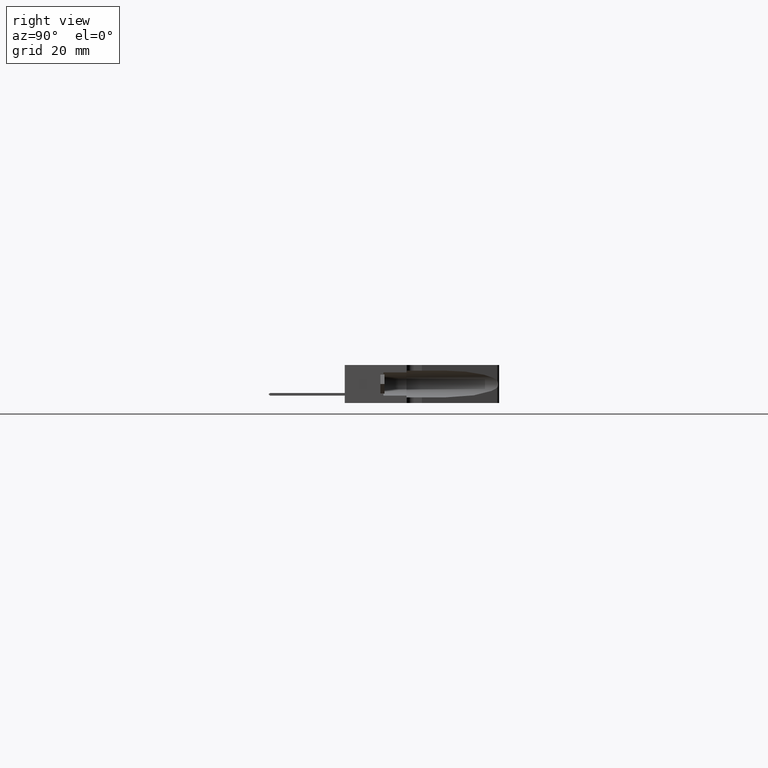
[diagram: clean part render]
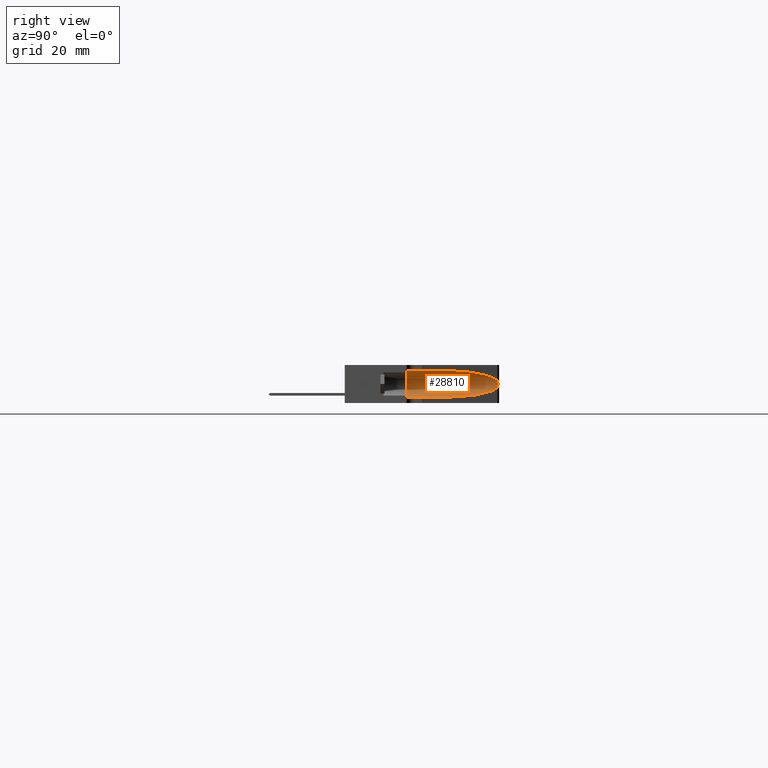
[diagram: same view with one face highlighted and labeled with its STEP entity id]
A machine part, right view. The second image highlights one B-rep face of the part: STEP entity #28810.
In plain terms, the highlighted cylindrical surface (edge-blend (fillet) strip) has radius 3.3083 mm, axis along (0, -1, 0).
Its self-contained STEP definition (entity closure, byte-faithful):
#506 = ORIENTED_EDGE ( 'NONE', *, *, #27250, .F. ) ;
#871 = CARTESIAN_POINT ( 'NONE',  ( 0.2601832251689556500, 1.238348025830904500, 0.1989473821119740700 ) ) ;
#2962 = VECTOR ( 'NONE', #34662, 39.37007874015748100 ) ;
#3964 = CARTESIAN_POINT ( 'NONE',  ( 0.1304999999999996200, 0.3499999999999999800, 0.1849999999999999100 ) ) ;
#4643 = CARTESIAN_POINT ( 'NONE',  ( 0.1305000000000001400, 1.618579452085978400, 0.05475000000000000700 ) ) ;
#5209 = CARTESIAN_POINT ( 'NONE',  ( 0.1305000000000001400, 0.7229729729729719200, 0.3152499999999999200 ) ) ;
#6159 = CARTESIAN_POINT ( 'NONE',  ( 0.2548722146876841200, 1.227184654139258100, 0.1463138950825924900 ) ) ;
#6753 = CARTESIAN_POINT ( 'NONE',  ( 0.1305000000000001400, 0.3499999999999999800, 0.05475000000000000700 ) ) ;
#7055 = ORIENTED_EDGE ( 'NONE', *, *, #25528, .T. ) ;
#7083 = AXIS2_PLACEMENT_3D ( 'NONE', #3964, #37403, #37707 ) ;
#7474 = CARTESIAN_POINT ( 'NONE',  ( 0.2601746583527694300, 1.238333326094013000, 0.1710187248053554000 ) ) ;
#7790 = CARTESIAN_POINT ( 'NONE',  ( 0.1896596859580425300, 0.9628095376677405800, 0.05474999999999999300 ) ) ;
#8021 = CARTESIAN_POINT ( 'NONE',  ( 0.2548722146876835600, 1.227184654139258400, 0.2236861049174074000 ) ) ;
#8688 = ORIENTED_EDGE ( 'NONE', *, *, #32174, .F. ) ;
#8937 = DIRECTION ( 'NONE',  ( -5.612000012723082900E-032, -1.000000000000000000, -5.916456789157588500E-031 ) ) ;
#9759 = VECTOR ( 'NONE', #8937, 39.37007874015748100 ) ;
#10749 = CARTESIAN_POINT ( 'NONE',  ( 0.2578854245038478300, 1.234861984818298900, 0.1576467210914303300 ) ) ;
#10897 = CARTESIAN_POINT ( 'NONE',  ( 0.2607492713587629700, 1.238958935659852500, 0.1920295986915269100 ) ) ;
#11816 = EDGE_LOOP ( 'NONE', ( #33201, #22443, #18613, #7055, #506, #8688 ) ) ;
#14166 = CARTESIAN_POINT ( 'NONE',  ( 0.2585429365154178200, 1.235904140357740900, 0.2091219894081829400 ) ) ;
#14315 = CARTESIAN_POINT ( 'NONE',  ( 0.2585611947877646300, 1.235932299014800700, 0.1609817666496035400 ) ) ;
#14868 = CARTESIAN_POINT ( 'NONE',  ( 0.1305000000000001400, 0.7229729729729719200, 0.3152499999999999200 ) ) ;
#16045 = DIRECTION ( 'NONE',  ( -5.612000012723082900E-032, -1.000000000000000000, -5.916456789157588500E-031 ) ) ;
#16179 = LINE ( 'NONE', #43091, #9759 ) ;
#16320 = EDGE_CURVE ( 'NONE', #26771, #25203, #20971, .T. ) ;
#17882 = CARTESIAN_POINT ( 'NONE',  ( 0.2563928845766985100, 1.231861671013515100, 0.1514406517340757000 ) ) ;
#18024 = CARTESIAN_POINT ( 'NONE',  ( 0.2563858078316529300, 1.231844894428759900, 0.2185847291077728000 ) ) ;
#18263 = CARTESIAN_POINT ( 'NONE',  ( 0.1896596859580425800, 0.9628095376677405800, 0.3152500000000000900 ) ) ;
#18613 = ORIENTED_EDGE ( 'NONE', *, *, #22116, .T. ) ;
#19077 =( BOUNDED_CURVE ( )  B_SPLINE_CURVE ( 3, ( #14868, #18263, #28654, #24962 ),
 .UNSPECIFIED., .F., .F. ) 
 B_SPLINE_CURVE_WITH_KNOTS ( ( 4, 4 ),
 ( 1.570796326794896800, 2.840028391437016800 ),
 .UNSPECIFIED. ) 
 CURVE ( )  GEOMETRIC_REPRESENTATION_ITEM ( )  RATIONAL_B_SPLINE_CURVE ( ( 1.000000000000000000, 0.8701995987432793500, 0.8701995987432793500, 1.000000000000000000 ) ) 
 REPRESENTATION_ITEM ( '' )  );
#20971 = B_SPLINE_CURVE_WITH_KNOTS ( 'NONE', 3,
 ( #38226, #24255, #18024, #24701, #14166, #871, #10897, #24841, #7474, #14315, #10749, #17882, #38075, #41758 ),
 .UNSPECIFIED., .F., .F.,
 ( 4, 2, 2, 2, 2, 2, 4 ),
 ( 1.734723475976807100E-018, 0.0002671599166263915900, 0.0005343198332527814500, 0.001068639666505565300, 0.001602959499758349200, 0.001870119416384741300, 0.002137279333011132300 ),
 .UNSPECIFIED. ) ;
#20987 =( BOUNDED_CURVE ( )  B_SPLINE_CURVE ( 3, ( #31414, #28560, #7790, #41635 ),
 .UNSPECIFIED., .F., .F. ) 
 B_SPLINE_CURVE_WITH_KNOTS ( ( 4, 4 ),
 ( 3.443156915742570300, 4.712388980384689700 ),
 .UNSPECIFIED. ) 
 CURVE ( )  GEOMETRIC_REPRESENTATION_ITEM ( )  RATIONAL_B_SPLINE_CURVE ( ( 1.000000000000000000, 0.8701995987432795700, 0.8701995987432795700, 1.000000000000000000 ) ) 
 REPRESENTATION_ITEM ( '' )  );
#22116 = EDGE_CURVE ( 'NONE', #25203, #37002, #20987, .T. ) ;
#22443 = ORIENTED_EDGE ( 'NONE', *, *, #16320, .T. ) ;
#24255 = CARTESIAN_POINT ( 'NONE',  ( 0.2555509601150310900, 1.229936324790667200, 0.2215040017517213600 ) ) ;
#24296 = EDGE_CURVE ( 'NONE', #30161, #26771, #19077, .T. ) ;
#24701 = CARTESIAN_POINT ( 'NONE',  ( 0.2578744793662743300, 1.234842503019048600, 0.2124027854212100500 ) ) ;
#24790 = AXIS2_PLACEMENT_3D ( 'NONE', #43066, #16045, #25658 ) ;
#24841 = CARTESIAN_POINT ( 'NONE',  ( 0.2607507272391346200, 1.238960720910290400, 0.1779974289772158200 ) ) ;
#24962 = CARTESIAN_POINT ( 'NONE',  ( 0.2548722146876835600, 1.227184654139258400, 0.2236861049174074000 ) ) ;
#25160 = CARTESIAN_POINT ( 'NONE',  ( 0.1305000000000001400, 0.7229729729729719200, 0.05475000000000000700 ) ) ;
#25203 = VERTEX_POINT ( 'NONE', #6159 ) ;
#25528 = EDGE_CURVE ( 'NONE', #37002, #41459, #41268, .T. ) ;
#25658 = DIRECTION ( 'NONE',  ( 0.0000000000000000000, 0.0000000000000000000, -1.000000000000000000 ) ) ;
#26771 = VERTEX_POINT ( 'NONE', #8021 ) ;
#27250 = EDGE_CURVE ( 'NONE', #35661, #41459, #29413, .T. ) ;
#28560 = CARTESIAN_POINT ( 'NONE',  ( 0.2373009454527221500, 1.155949778862387600, 0.08982390534877546200 ) ) ;
#28654 = CARTESIAN_POINT ( 'NONE',  ( 0.2373009454527222100, 1.155949778862387800, 0.2801760946512244500 ) ) ;
#28810 = ADVANCED_FACE ( 'NONE', ( #32392 ), #31828, .F. ) ;
#29413 = CIRCLE ( 'NONE', #7083, 0.1302499999999999500 ) ;
#30161 = VERTEX_POINT ( 'NONE', #5209 ) ;
#31414 = CARTESIAN_POINT ( 'NONE',  ( 0.2548722146876841200, 1.227184654139258100, 0.1463138950825924900 ) ) ;
#31828 = CYLINDRICAL_SURFACE ( 'NONE', #24790, 0.1302500000000000000 ) ;
#32174 = EDGE_CURVE ( 'NONE', #30161, #35661, #16179, .T. ) ;
#32295 = CARTESIAN_POINT ( 'NONE',  ( 0.1305000000000001400, 0.3499999999999999800, 0.3152500000000000300 ) ) ;
#32392 = FACE_OUTER_BOUND ( 'NONE', #11816, .T. ) ;
#33201 = ORIENTED_EDGE ( 'NONE', *, *, #24296, .T. ) ;
#34662 = DIRECTION ( 'NONE',  ( -5.612000012723082900E-032, -1.000000000000000000, -5.916456789157588500E-031 ) ) ;
#35661 = VERTEX_POINT ( 'NONE', #32295 ) ;
#37002 = VERTEX_POINT ( 'NONE', #25160 ) ;
#37403 = DIRECTION ( 'NONE',  ( 5.612000012723082900E-032, 1.000000000000000000, 5.916456789157588500E-031 ) ) ;
#37707 = DIRECTION ( 'NONE',  ( 0.0000000000000000000, 0.0000000000000000000, 1.000000000000000000 ) ) ;
#38075 = CARTESIAN_POINT ( 'NONE',  ( 0.2555500627181148700, 1.229932686695058200, 0.1484931132009924800 ) ) ;
#38226 = CARTESIAN_POINT ( 'NONE',  ( 0.2548722146876835600, 1.227184654139258400, 0.2236861049174074000 ) ) ;
#41268 = LINE ( 'NONE', #4643, #2962 ) ;
#41459 = VERTEX_POINT ( 'NONE', #6753 ) ;
#41635 = CARTESIAN_POINT ( 'NONE',  ( 0.1305000000000001400, 0.7229729729729719200, 0.05475000000000000700 ) ) ;
#41758 = CARTESIAN_POINT ( 'NONE',  ( 0.2548722146876841200, 1.227184654139258100, 0.1463138950825924900 ) ) ;
#43066 = CARTESIAN_POINT ( 'NONE',  ( 0.1304999999999996200, 1.618579452085978400, 0.1850000000000000000 ) ) ;
#43091 = CARTESIAN_POINT ( 'NONE',  ( 0.1305000000000001400, 1.618579452085978400, 0.3152499999999999200 ) ) ;